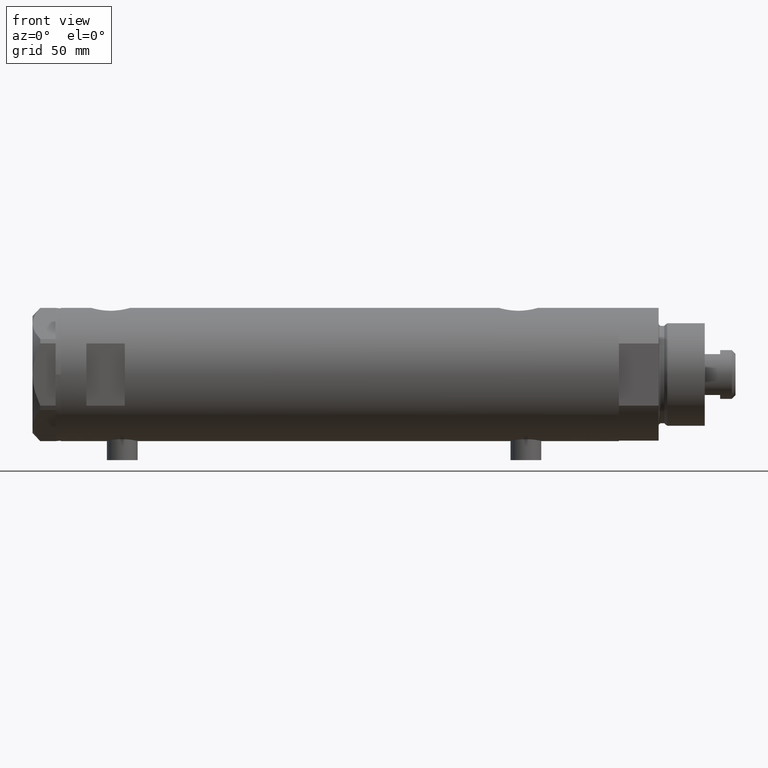
[diagram: clean part render]
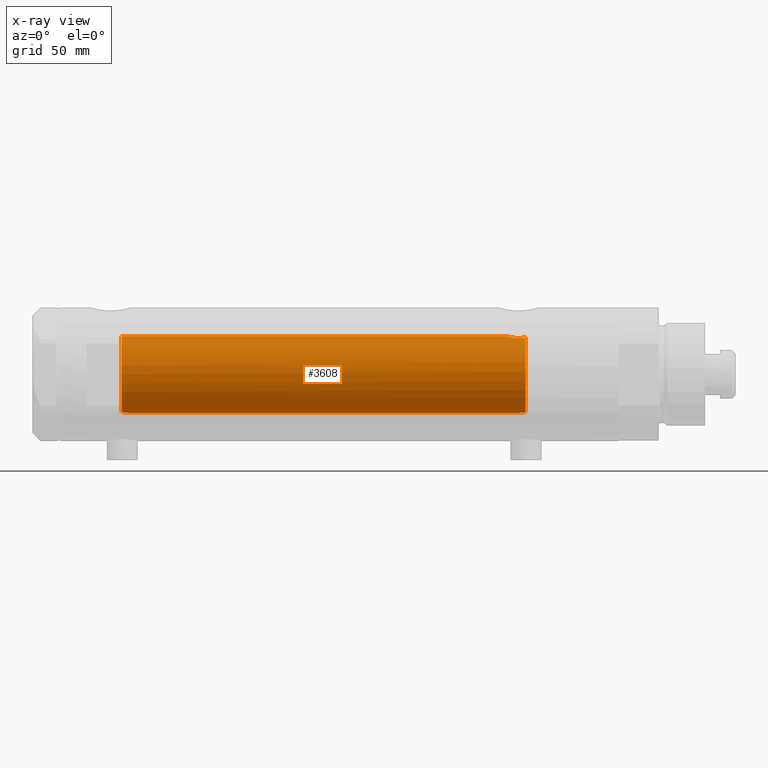
[diagram: x-ray — body ghosted, one internal face saturated and labeled with its STEP entity id]
A machine part, front view, then the same camera in x-ray: the body is ghosted and one INTERNAL B-rep face — a face not visible from any outside direction — is saturated and labeled: STEP entity #3608.
In plain terms, the highlighted cylindrical surface (partial cylindrical patch) has radius 15 mm, axis along (1, 0, -0).
Its self-contained STEP definition (entity closure, byte-faithful):
#1 = EDGE_CURVE ( 'NONE', #264, #1794, #3394, .T. ) ;
#80 = CARTESIAN_POINT ( 'NONE',  ( -14.80570803900864085, -2.410056876876593979, -71.91354637206102041 ) ) ;
#101 = DIRECTION ( 'NONE',  ( -0.000000000000000000, -0.000000000000000000, -1.000000000000000000 ) ) ;
#208 = VECTOR ( 'NONE', #928, 1000.000000000000000 ) ;
#211 = CARTESIAN_POINT ( 'NONE',  ( -15.00000000000000000, 3.061618116097013428E-16, 82.44999999999998863 ) ) ;
#264 = VERTEX_POINT ( 'NONE', #3362 ) ;
#292 = DIRECTION ( 'NONE',  ( -1.000000000000000000, 0.000000000000000000, 0.000000000000000000 ) ) ;
#314 = CARTESIAN_POINT ( 'NONE',  ( 14.97537530859972321, -0.8874117095427768165, -64.96137464055831856 ) ) ;
#333 = CARTESIAN_POINT ( 'NONE',  ( 14.20819413761016037, -4.809312895991457282, -70.51713251522167525 ) ) ;
#455 = FACE_OUTER_BOUND ( 'NONE', #1544, .T. ) ;
#457 = CARTESIAN_POINT ( 'NONE',  ( -14.99999999999999822, -0.1613061104920442967, -70.15000000000000568 ) ) ;
#487 = CARTESIAN_POINT ( 'NONE',  ( -14.79053751558745589, -2.497999199359367761, -72.54999999999999716 ) ) ;
#552 = CARTESIAN_POINT ( 'NONE',  ( -14.99999999999999822, -0.1716226368084284859, 82.45000000000001705 ) ) ;
#604 = B_SPLINE_CURVE_WITH_KNOTS ( 'NONE', 3,
 ( #1604, #457, #1224, #3253, #4120, #2840, #4852, #2427, #4441, #4875, #850, #2905, #1662, #80, #4068, #487 ),
 .UNSPECIFIED., .F., .F.,
 ( 4, 2, 2, 2, 2, 2, 2, 4 ),
 ( 0.000000000000000000, 0.0004769863284873165476, 0.0009539726569746333120, 0.001430958985461950076, 0.001907945313949267058, 0.002384931642436583822, 0.002861917970923900153, 0.003815890627898496819 ),
 .UNSPECIFIED. ) ;
#724 = CARTESIAN_POINT ( 'NONE',  ( 14.85289483991917692, -2.102865829523694607, 85.05860377881607803 ) ) ;
#742 = CARTESIAN_POINT ( 'NONE',  ( 14.30602371879160728, -4.510400617436905790, -71.58665028800270136 ) ) ;
#770 = CARTESIAN_POINT ( 'NONE',  ( 14.19858338301463085, -4.837406781463694294, -69.18614104090498529 ) ) ;
#789 = CARTESIAN_POINT ( 'NONE',  ( 14.20926245015525957, -4.806160851464704287, -68.96377327795615031 ) ) ;
#850 = CARTESIAN_POINT ( 'NONE',  ( -14.87290636797879628, -1.950714596786584654, -71.07831246618854948 ) ) ;
#872 = CYLINDRICAL_SURFACE ( 'NONE', #4157, 15.00000000000000000 ) ;
#928 = DIRECTION ( 'NONE',  ( -0.000000000000000000, -0.000000000000000000, -1.000000000000000000 ) ) ;
#1013 = DIRECTION ( 'NONE',  ( 1.000000000000000000, 0.000000000000000000, 0.000000000000000000 ) ) ;
#1082 = CARTESIAN_POINT ( 'NONE',  ( 0.000000000000000000, 0.000000000000000000, -72.54999999999999716 ) ) ;
#1091 = EDGE_CURVE ( 'NONE', #3269, #1693, #1304, .T. ) ;
#1100 = CARTESIAN_POINT ( 'NONE',  ( 14.33594561531104006, -4.414979644548150617, -67.69453393419244946 ) ) ;
#1106 = DIRECTION ( 'NONE',  ( 0.000000000000000000, 0.000000000000000000, -1.000000000000000000 ) ) ;
#1123 = CARTESIAN_POINT ( 'NONE',  ( 14.81710879718118079, -2.343063746046463613, -65.48067662538953471 ) ) ;
#1152 = ORIENTED_EDGE ( 'NONE', *, *, #4764, .F. ) ;
#1156 = CARTESIAN_POINT ( 'NONE',  ( 14.82638779339053769, -2.275571356824481750, 85.15000000000000568 ) ) ;
#1185 = CARTESIAN_POINT ( 'NONE',  ( 14.39424372609267877, -4.221002267729139668, -72.17893131093291004 ) ) ;
#1191 = CARTESIAN_POINT ( 'NONE',  ( 15.00000000000000000, 0.000000000000000000, 84.58500000000000796 ) ) ;
#1204 = CARTESIAN_POINT ( 'NONE',  ( 15.00000000000000000, 5.959273473684245944E-16, -64.88500000000000512 ) ) ;
#1224 = CARTESIAN_POINT ( 'NONE',  ( -14.99740058099026108, -0.3199290537848277771, -70.16546469274585718 ) ) ;
#1287 = VERTEX_POINT ( 'NONE', #4332 ) ;
#1304 = CIRCLE ( 'NONE', #5158, 15.00000000000000000 ) ;
#1361 = CARTESIAN_POINT ( 'NONE',  ( -14.91608554980932233, -1.590576762727821558, 83.01369720243327777 ) ) ;
#1394 = CARTESIAN_POINT ( 'NONE',  ( -14.95581892566389470, -1.161262481484110154, 82.72937042154403287 ) ) ;
#1416 = DIRECTION ( 'NONE',  ( 0.000000000000000000, 0.000000000000000000, 1.000000000000000000 ) ) ;
#1485 = VERTEX_POINT ( 'NONE', #1191 ) ;
#1544 = EDGE_LOOP ( 'NONE', ( #2761, #2919, #2134, #3668, #1152, #1829, #3180, #4714 ) ) ;
#1566 = CARTESIAN_POINT ( 'NONE',  ( 14.72015646623406049, -2.909233045280597896, -65.82572079632734585 ) ) ;
#1604 = CARTESIAN_POINT ( 'NONE',  ( -15.00000000000000000, 0.000000000000000000, -70.15000000000000568 ) ) ;
#1662 = CARTESIAN_POINT ( 'NONE',  ( -14.83575030094399771, -2.214690538106026452, -71.47938890130201628 ) ) ;
#1693 = VERTEX_POINT ( 'NONE', #1156 ) ;
#1704 = VERTEX_POINT ( 'NONE', #1204 ) ;
#1734 = EDGE_CURVE ( 'NONE', #3269, #1287, #4054, .T. ) ;
#1787 = CARTESIAN_POINT ( 'NONE',  ( -14.79723843696374885, -2.458094276708257642, 84.46231574989086255 ) ) ;
#1794 = VERTEX_POINT ( 'NONE', #4987 ) ;
#1829 = ORIENTED_EDGE ( 'NONE', *, *, #4366, .F. ) ;
#1840 = CARTESIAN_POINT ( 'NONE',  ( -14.87260732106556382, -1.954338522023922220, 83.38146298750766050 ) ) ;
#1865 = CARTESIAN_POINT ( 'NONE',  ( -14.85859683553260879, -2.056701007386124491, 83.51843972450893716 ) ) ;
#1870 = CARTESIAN_POINT ( 'NONE',  ( 15.00000000000000000, 0.000000000000000000, 84.58500000000000796 ) ) ;
#1912 = CARTESIAN_POINT ( 'NONE',  ( 14.46277203719950677, -3.978470183374508640, -72.54999999999999716 ) ) ;
#1934 = CARTESIAN_POINT ( 'NONE',  ( 14.30772250772360366, -4.505024017690372418, -67.90010806953213773 ) ) ;
#1994 = CARTESIAN_POINT ( 'NONE',  ( 14.18786347641750112, -4.868757996482119488, -69.63322300400297138 ) ) ;
#2019 = CARTESIAN_POINT ( 'NONE',  ( -14.79155164274526157, -2.491987158875416775, 85.15000000000000568 ) ) ;
#2134 = ORIENTED_EDGE ( 'NONE', *, *, #4255, .F. ) ;
#2216 = VERTEX_POINT ( 'NONE', #3555 ) ;
#2243 = VECTOR ( 'NONE', #101, 1000.000000000000000 ) ;
#2262 = CARTESIAN_POINT ( 'NONE',  ( -14.83314878996174357, -2.232849285003160489, 83.81256080311605672 ) ) ;
#2325 = CARTESIAN_POINT ( 'NONE',  ( 14.82638779339053769, -2.275571356824481750, 85.15000000000000568 ) ) ;
#2358 = CARTESIAN_POINT ( 'NONE',  ( 15.00000000000000888, -0.2216692655473423146, -64.88500000000003354 ) ) ;
#2381 = CARTESIAN_POINT ( 'NONE',  ( 14.64727859494137263, -3.248701865452405801, -66.10174013696655493 ) ) ;
#2403 = DIRECTION ( 'NONE',  ( -1.000000000000000000, 0.000000000000000000, 0.000000000000000000 ) ) ;
#2427 = CARTESIAN_POINT ( 'NONE',  ( -14.92627313122706134, -1.491421694539947440, -70.63730514635739155 ) ) ;
#2540 = CARTESIAN_POINT ( 'NONE',  ( -14.82167156606024427, -2.306788152106017176, 83.97115114601639618 ) ) ;
#2573 = CARTESIAN_POINT ( 'NONE',  ( -14.94313933514151493, -1.312299271472202600, 82.81526966946924517 ) ) ;
#2669 = CARTESIAN_POINT ( 'NONE',  ( 14.93900636919600089, -1.364886281976675386, 84.77622504971314754 ) ) ;
#2679 = EDGE_CURVE ( 'NONE', #1485, #1704, #4021, .T. ) ;
#2710 = CARTESIAN_POINT ( 'NONE',  ( 15.00000000000000000, 5.959273473684245944E-16, -64.88500000000000512 ) ) ;
#2732 = CARTESIAN_POINT ( 'NONE',  ( 14.19797987272029793, -4.839174951492910992, -70.29741451501413962 ) ) ;
#2761 = ORIENTED_EDGE ( 'NONE', *, *, #4911, .F. ) ;
#2762 = CARTESIAN_POINT ( 'NONE',  ( 14.33349657381506148, -4.422893686125038748, -71.78827841538880250 ) ) ;
#2793 = CARTESIAN_POINT ( 'NONE',  ( 14.25977760983849763, -4.654557688538883298, -68.31736805897654108 ) ) ;
#2840 = CARTESIAN_POINT ( 'NONE',  ( -14.96154495298569387, -1.083625483837070025, -70.39138979525010598 ) ) ;
#2882 = CARTESIAN_POINT ( 'NONE',  ( -15.00000000000000000, 0.000000000000000000, 108.9499999999999886 ) ) ;
#2905 = CARTESIAN_POINT ( 'NONE',  ( -14.84760220014584498, -2.134792770974425213, -71.33921818480344257 ) ) ;
#2919 = ORIENTED_EDGE ( 'NONE', *, *, #2679, .T. ) ;
#2944 = CARTESIAN_POINT ( 'NONE',  ( -14.78989771875220072, -2.501882951377193187, 84.80631597653685105 ) ) ;
#3120 = CARTESIAN_POINT ( 'NONE',  ( 14.49994286062941384, -3.853373987417223034, -66.74743896782911179 ) ) ;
#3129 = CARTESIAN_POINT ( 'NONE',  ( 14.87720562886503828, -1.924385875533403789, 84.97741675737692901 ) ) ;
#3152 = CARTESIAN_POINT ( 'NONE',  ( 14.84733308118440398, -2.144376633039211999, -65.37751912952717248 ) ) ;
#3179 = CARTESIAN_POINT ( 'NONE',  ( 14.42796883436190392, -4.108435602805834641, -67.10726922759032220 ) ) ;
#3180 = ORIENTED_EDGE ( 'NONE', *, *, #1734, .F. ) ;
#3209 = CARTESIAN_POINT ( 'NONE',  ( 14.92307637240704032, -1.532123959568890692, -65.12726557582080034 ) ) ;
#3232 = CARTESIAN_POINT ( 'NONE',  ( 14.23846660849503110, -4.718934182878724570, -70.95401121469809880 ) ) ;
#3253 = CARTESIAN_POINT ( 'NONE',  ( -14.98749134158486740, -0.6320459414166045287, -70.22599747929442060 ) ) ;
#3269 = VERTEX_POINT ( 'NONE', #3363 ) ;
#3362 = CARTESIAN_POINT ( 'NONE',  ( 14.46277203719950677, -3.978470183374508640, -72.54999999999999716 ) ) ;
#3363 = CARTESIAN_POINT ( 'NONE',  ( -14.79155164274526157, -2.491987158875416775, 85.15000000000000568 ) ) ;
#3394 = CIRCLE ( 'NONE', #5147, 15.00000000000000000 ) ;
#3452 = CARTESIAN_POINT ( 'NONE',  ( -14.80379558280398200, -2.418854260473059181, 84.29535450491661663 ) ) ;
#3516 = CARTESIAN_POINT ( 'NONE',  ( 15.00000000000000355, -0.3999014018875933218, 84.58499999999999375 ) ) ;
#3528 = CARTESIAN_POINT ( 'NONE',  ( 14.96064712090283955, -1.106639041422192049, -65.00738179736373468 ) ) ;
#3551 = CARTESIAN_POINT ( 'NONE',  ( 14.99508877558422881, -0.4434836953032569862, -64.90007684727665094 ) ) ;
#3555 = CARTESIAN_POINT ( 'NONE',  ( -15.00000000000000000, 0.000000000000000000, -70.15000000000000568 ) ) ;
#3608 = ADVANCED_FACE ( 'NONE', ( #455 ), #872, .F. ) ;
#3668 = ORIENTED_EDGE ( 'NONE', *, *, #1, .T. ) ;
#3692 = CARTESIAN_POINT ( 'NONE',  ( 15.00000000000000000, 1.836970198721029589E-15, 108.9499999999999886 ) ) ;
#3790 = CARTESIAN_POINT ( 'NONE',  ( -14.99695275358353719, -0.3460123648701097787, 82.46810396824247391 ) ) ;
#3886 = B_SPLINE_CURVE_WITH_KNOTS ( 'NONE', 3,
 ( #1912, #4782, #1185, #2762, #742, #4316, #3232, #333, #2732, #4724, #1994, #770, #789, #4753, #2793, #1934, #1100, #3179, #3120, #2381, #1566, #1123, #3152, #3977, #3209, #3528, #314, #3551, #2358, #2710 ),
 .UNSPECIFIED., .F., .F.,
 ( 4, 2, 2, 2, 2, 2, 2, 2, 2, 2, 2, 2, 2, 2, 4 ),
 ( 0.004672505804584295430, 0.005337629501999315365, 0.006002753199414335300, 0.006667876896829355235, 0.007333000594244375170, 0.007998124291659395105, 0.008663247989074415040, 0.009328371686489433240, 0.009993495383904454910, 0.01132374277873445662, 0.01265399017356445832, 0.01331911387097945050, 0.01398423756839444268, 0.01464936126580943312, 0.01531448496322442530 ),
 .UNSPECIFIED. ) ;
#3942 = CARTESIAN_POINT ( 'NONE',  ( 14.98404828787190901, -0.7909490205761858794, 84.63356230794190083 ) ) ;
#3977 = CARTESIAN_POINT ( 'NONE',  ( 14.90017778876745247, -1.739641523727897710, -65.20130925695124802 ) ) ;
#4021 = LINE ( 'NONE', #3692, #2243 ) ;
#4054 = B_SPLINE_CURVE_WITH_KNOTS ( 'NONE', 3,
 ( #2019, #4805, #2944, #1787, #3452, #2540, #2262, #1865, #1840, #5021, #1361, #2573, #1394, #4608, #5041, #3790, #552, #211 ),
 .UNSPECIFIED., .F., .F.,
 ( 4, 2, 2, 2, 2, 2, 2, 2, 4 ),
 ( 0.003715686714229614416, 0.004229951999599971396, 0.004744217284970328810, 0.005258482570340686224, 0.005772747855711043638, 0.006287013141081401052, 0.006801278426451758466, 0.007315543711822115880, 0.007829808997192473294 ),
 .UNSPECIFIED. ) ;
#4068 = CARTESIAN_POINT ( 'NONE',  ( -14.79268570220017942, -2.485279885960850699, -72.23227165314102649 ) ) ;
#4120 = CARTESIAN_POINT ( 'NONE',  ( -14.98007298506453822, -0.7870736506658174703, -70.27174868555717069 ) ) ;
#4153 = LINE ( 'NONE', #2882, #208 ) ;
#4157 = AXIS2_PLACEMENT_3D ( 'NONE', #4463, #4406, #2403 ) ;
#4255 = EDGE_CURVE ( 'NONE', #264, #1704, #3886, .T. ) ;
#4316 = CARTESIAN_POINT ( 'NONE',  ( 14.25856516724843637, -4.658255869285517825, -71.17044016644935311 ) ) ;
#4332 = CARTESIAN_POINT ( 'NONE',  ( -15.00000000000000000, 3.061618116097013428E-16, 82.44999999999998863 ) ) ;
#4366 = EDGE_CURVE ( 'NONE', #1287, #2216, #4153, .T. ) ;
#4406 = DIRECTION ( 'NONE',  ( -0.000000000000000000, -0.000000000000000000, -1.000000000000000000 ) ) ;
#4441 = CARTESIAN_POINT ( 'NONE',  ( -14.91288509639097271, -1.618377549727019415, -70.73790984008952876 ) ) ;
#4448 = B_SPLINE_CURVE_WITH_KNOTS ( 'NONE', 3,
 ( #1870, #3516, #3942, #2669, #5099, #3129, #724, #2325 ),
 .UNSPECIFIED., .F., .F.,
 ( 4, 2, 2, 4 ),
 ( 0.000000000000000000, 0.001182100180564268996, 0.001773150270846398724, 0.002364200361128528886 ),
 .UNSPECIFIED. ) ;
#4463 = CARTESIAN_POINT ( 'NONE',  ( 0.000000000000000000, 0.000000000000000000, 108.9499999999999886 ) ) ;
#4608 = CARTESIAN_POINT ( 'NONE',  ( -14.97699254061833152, -0.8454257663520229338, 82.59097868826833633 ) ) ;
#4687 = CARTESIAN_POINT ( 'NONE',  ( 0.000000000000000000, 0.000000000000000000, 85.15000000000000568 ) ) ;
#4714 = ORIENTED_EDGE ( 'NONE', *, *, #1091, .T. ) ;
#4724 = CARTESIAN_POINT ( 'NONE',  ( 14.18781489734108270, -4.868896704194244585, -69.85545969036061820 ) ) ;
#4753 = CARTESIAN_POINT ( 'NONE',  ( 14.23984499268011561, -4.714778477509576682, -68.53008258614765680 ) ) ;
#4764 = EDGE_CURVE ( 'NONE', #2216, #1794, #604, .T. ) ;
#4782 = CARTESIAN_POINT ( 'NONE',  ( 14.42775250319759728, -4.105775281508738495, -72.36911445102909113 ) ) ;
#4805 = CARTESIAN_POINT ( 'NONE',  ( -14.78924132900106692, -2.505700361584517921, 84.97913437470931797 ) ) ;
#4852 = CARTESIAN_POINT ( 'NONE',  ( -14.95054302956255654, -1.224431043437672617, -70.46458290830103977 ) ) ;
#4875 = CARTESIAN_POINT ( 'NONE',  ( -14.88625129008227077, -1.847379311388074097, -70.95812992433161526 ) ) ;
#4911 = EDGE_CURVE ( 'NONE', #1485, #1693, #4448, .T. ) ;
#4987 = CARTESIAN_POINT ( 'NONE',  ( -14.79053751558745589, -2.497999199359367761, -72.54999999999999716 ) ) ;
#5021 = CARTESIAN_POINT ( 'NONE',  ( -14.90147761301467710, -1.720422196468680776, 83.12794212931564175 ) ) ;
#5041 = CARTESIAN_POINT ( 'NONE',  ( -14.98541608527169977, -0.6823644196029188258, 82.53879464417549627 ) ) ;
#5099 = CARTESIAN_POINT ( 'NONE',  ( 14.92029983160078466, -1.555365312915180098, 84.83609703141414116 ) ) ;
#5147 = AXIS2_PLACEMENT_3D ( 'NONE', #1082, #1106, #292 ) ;
#5158 = AXIS2_PLACEMENT_3D ( 'NONE', #4687, #1416, #1013 ) ;